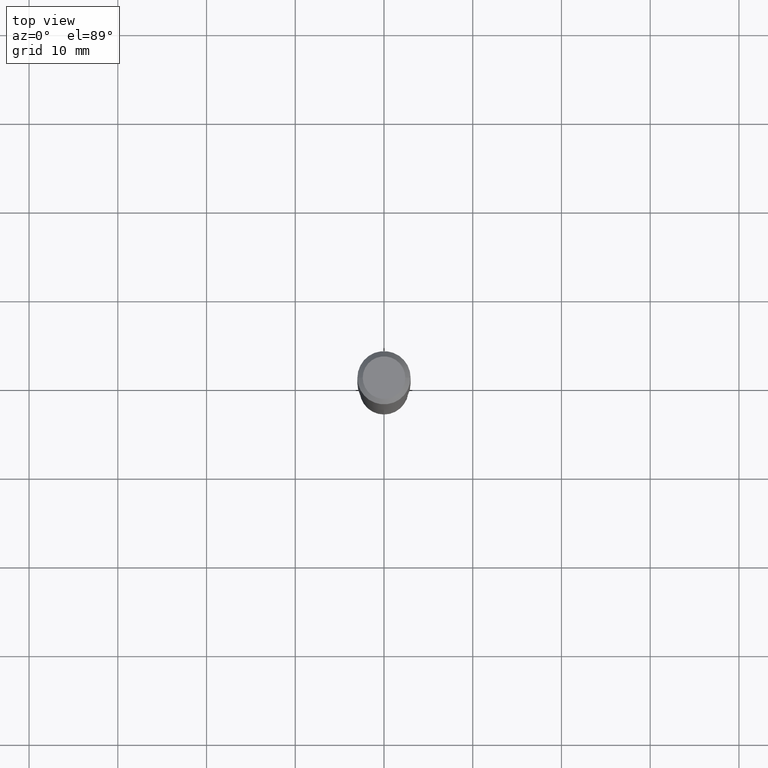
[diagram: clean part render]
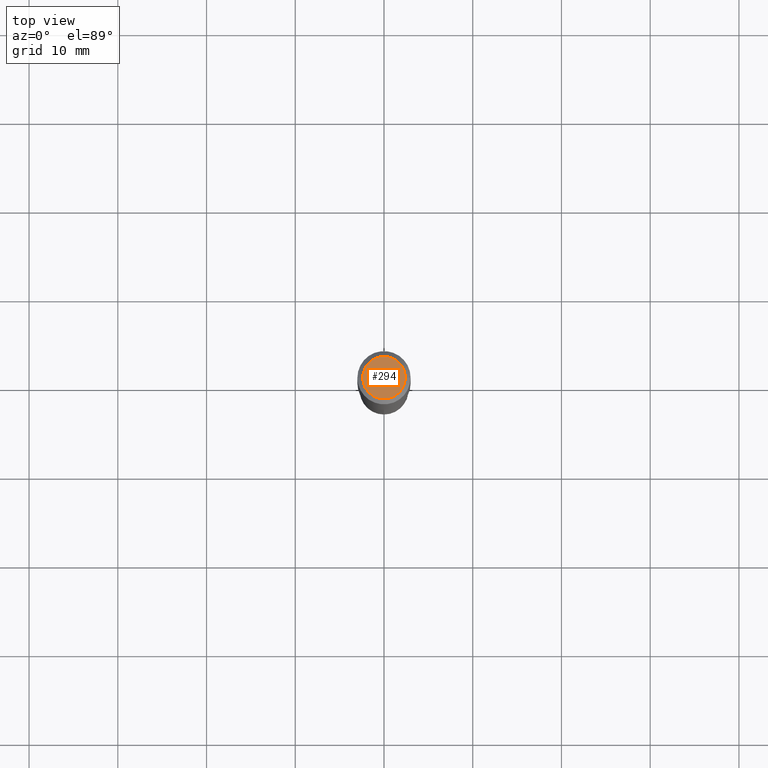
[diagram: same view with one face highlighted and labeled with its STEP entity id]
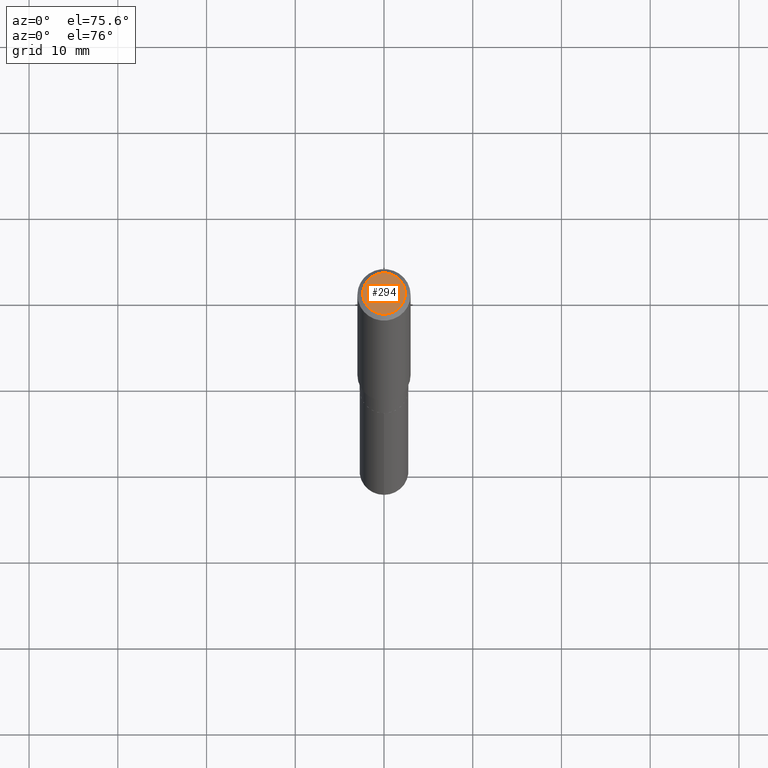
[diagram: same view with one face highlighted and labeled with its STEP entity id]
A machine part, top view. The second image highlights one B-rep face of the part: STEP entity #294.
A second angle (auxiliary view) of the same face is appended — the face is thin or edge-on in the first view.
In plain terms, the highlighted planar face has unit normal (0, -0, -1).
Its self-contained STEP definition (entity closure, byte-faithful):
#19 = VERTEX_POINT ( 'NONE', #117 ) ;
#35 = AXIS2_PLACEMENT_3D ( 'NONE', #178, #55, #280 ) ;
#38 = CARTESIAN_POINT ( 'NONE',  ( 0.09447999999999998066, -7.704367267948738690E-16, -1.928573779296752193E-17 ) ) ;
#46 = PLANE ( 'NONE',  #60 ) ;
#55 = DIRECTION ( 'NONE',  ( -2.445468806185136597E-29, 3.491481338843145583E-15, 1.000000000000000000 ) ) ;
#60 = AXIS2_PLACEMENT_3D ( 'NONE', #424, #464, #196 ) ;
#71 = EDGE_CURVE ( 'NONE', #19, #77, #124, .T. ) ;
#77 = VERTEX_POINT ( 'NONE', #38 ) ;
#117 = CARTESIAN_POINT ( 'NONE',  ( -0.09447999999999998066, 7.009847083995354710E-16, -1.928573779297727792E-17 ) ) ;
#124 = CIRCLE ( 'NONE', #306, 0.09447999999999998066 ) ;
#141 = DIRECTION ( 'NONE',  ( 1.000000000000000000, -6.982962677686267499E-15, 4.875432709231658792E-29 ) ) ;
#178 = CARTESIAN_POINT ( 'NONE',  ( 4.716267017698007905E-46, -6.733579360998555036E-32, -1.928573779297252010E-17 ) ) ;
#196 = DIRECTION ( 'NONE',  ( -1.000000000000000000, 6.982962677686265922E-15, -4.876176775795935793E-29 ) ) ;
#256 = CARTESIAN_POINT ( 'NONE',  ( 4.716267017698007905E-46, -6.733579360998555036E-32, -1.928573779297252010E-17 ) ) ;
#280 = DIRECTION ( 'NONE',  ( 1.000000000000000000, -6.982962677686267499E-15, 4.875432709231658792E-29 ) ) ;
#294 = ADVANCED_FACE ( 'NONE', ( #351 ), #46, .F. ) ;
#302 = ORIENTED_EDGE ( 'NONE', *, *, #449, .T. ) ;
#306 = AXIS2_PLACEMENT_3D ( 'NONE', #256, #378, #141 ) ;
#322 = ORIENTED_EDGE ( 'NONE', *, *, #71, .T. ) ;
#340 = CIRCLE ( 'NONE', #35, 0.09447999999999998066 ) ;
#351 = FACE_OUTER_BOUND ( 'NONE', #450, .T. ) ;
#378 = DIRECTION ( 'NONE',  ( -2.445468806185136597E-29, 3.491481338843145583E-15, 1.000000000000000000 ) ) ;
#424 = CARTESIAN_POINT ( 'NONE',  ( 2.358133508849003952E-46, -3.366789680499277518E-32, -9.642868896486260050E-18 ) ) ;
#449 = EDGE_CURVE ( 'NONE', #77, #19, #340, .T. ) ;
#450 = EDGE_LOOP ( 'NONE', ( #322, #302 ) ) ;
#464 = DIRECTION ( 'NONE',  ( 2.438088387897960049E-29, -3.491481338843145188E-15, -1.000000000000000000 ) ) ;